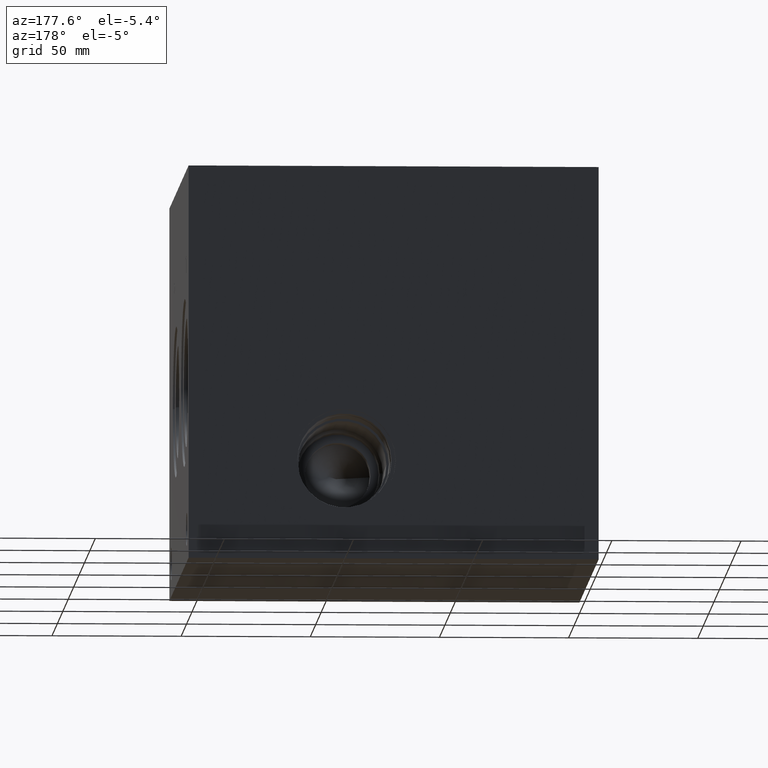
[diagram: clean part render]
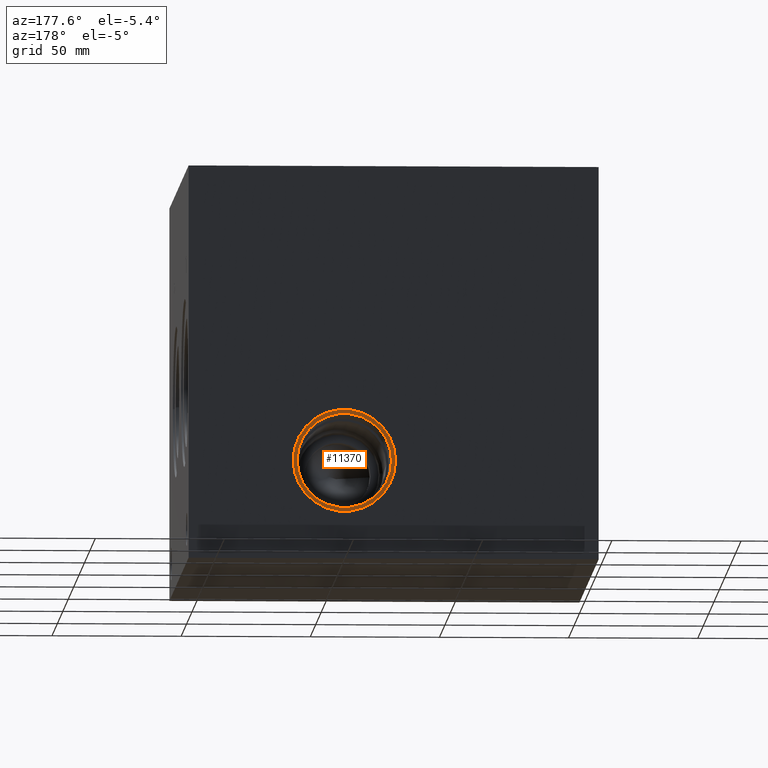
[diagram: same view with one face highlighted and labeled with its STEP entity id]
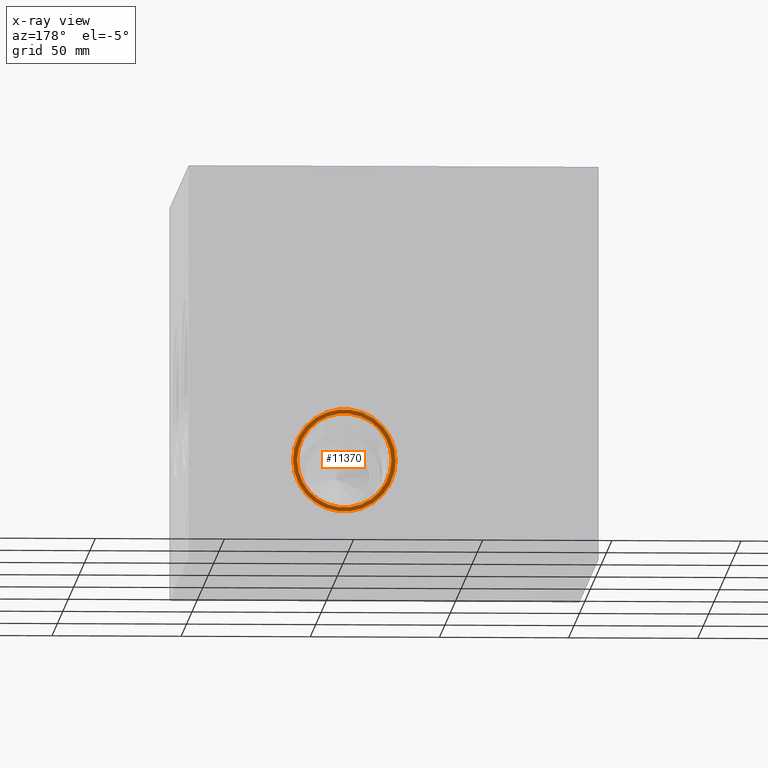
[diagram: x-ray of the same camera — body ghosted, the highlighted face saturated]
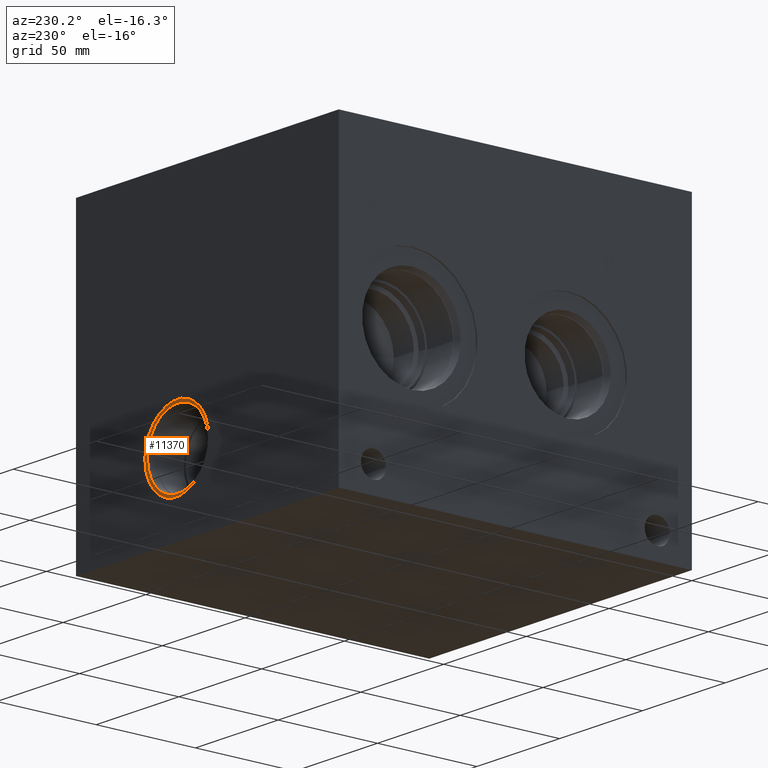
[diagram: same view with one face highlighted and labeled with its STEP entity id]
A machine part, auxiliary view. The second image highlights one B-rep face of the part: STEP entity #11370.
The next image is the same camera in x-ray: the body ghosted, the highlighted face saturated — about 0% of this face is hidden behind the body in this view.
A second angle (auxiliary view) of the same face is appended — the face is thin or edge-on in the first view.
In plain terms, the highlighted planar face has unit normal (0, -1, 0).
Its self-contained STEP definition (entity closure, byte-faithful):
#154=CIRCLE('',#11859,19.8374);
#155=CIRCLE('',#11860,19.8374);
#156=CIRCLE('',#11862,18.2626);
#157=CIRCLE('',#11863,18.2626);
#437=FACE_BOUND('',#1907,.T.);
#780=PLANE('',#11861);
#1259=FACE_OUTER_BOUND('',#1906,.T.);
#1906=EDGE_LOOP('',(#9604,#9605));
#1907=EDGE_LOOP('',(#9606,#9607));
#5321=VERTEX_POINT('',#19087);
#5322=VERTEX_POINT('',#19089);
#5323=VERTEX_POINT('',#19093);
#5324=VERTEX_POINT('',#19094);
#6820=EDGE_CURVE('',#5321,#5322,#154,.T.);
#6821=EDGE_CURVE('',#5322,#5321,#155,.T.);
#6822=EDGE_CURVE('',#5323,#5324,#156,.T.);
#6823=EDGE_CURVE('',#5324,#5323,#157,.T.);
#9604=ORIENTED_EDGE('',*,*,#6821,.F.);
#9605=ORIENTED_EDGE('',*,*,#6820,.F.);
#9606=ORIENTED_EDGE('',*,*,#6822,.T.);
#9607=ORIENTED_EDGE('',*,*,#6823,.T.);
#11370=ADVANCED_FACE('',(#1259,#437),#780,.F.);
#11859=AXIS2_PLACEMENT_3D('',#19090,#13827,#13828);
#11860=AXIS2_PLACEMENT_3D('',#19091,#13829,#13830);
#11861=AXIS2_PLACEMENT_3D('',#19092,#13831,#13832);
#11862=AXIS2_PLACEMENT_3D('',#19095,#13833,#13834);
#11863=AXIS2_PLACEMENT_3D('',#19096,#13835,#13836);
#13827=DIRECTION('center_axis',(0.,-1.,0.));
#13828=DIRECTION('ref_axis',(1.,0.,0.));
#13829=DIRECTION('center_axis',(0.,-1.,0.));
#13830=DIRECTION('ref_axis',(1.,0.,0.));
#13831=DIRECTION('center_axis',(0.,-1.,0.));
#13832=DIRECTION('ref_axis',(0.,0.,-1.));
#13833=DIRECTION('center_axis',(0.,-1.,0.));
#13834=DIRECTION('ref_axis',(1.,0.,0.));
#13835=DIRECTION('center_axis',(0.,-1.,0.));
#13836=DIRECTION('ref_axis',(1.,0.,0.));
#19087=CARTESIAN_POINT('',(78.5876,176.8856,38.1));
#19089=CARTESIAN_POINT('',(118.2624,176.8856,38.1));
#19090=CARTESIAN_POINT('Origin',(98.425,176.8856,38.1));
#19091=CARTESIAN_POINT('Origin',(98.425,176.8856,38.1));
#19092=CARTESIAN_POINT('Origin',(116.6876,176.8856,38.1));
#19093=CARTESIAN_POINT('',(116.6876,176.8856,38.1));
#19094=CARTESIAN_POINT('',(80.1624,176.8856,38.1));
#19095=CARTESIAN_POINT('Origin',(98.425,176.8856,38.1));
#19096=CARTESIAN_POINT('Origin',(98.425,176.8856,38.1));